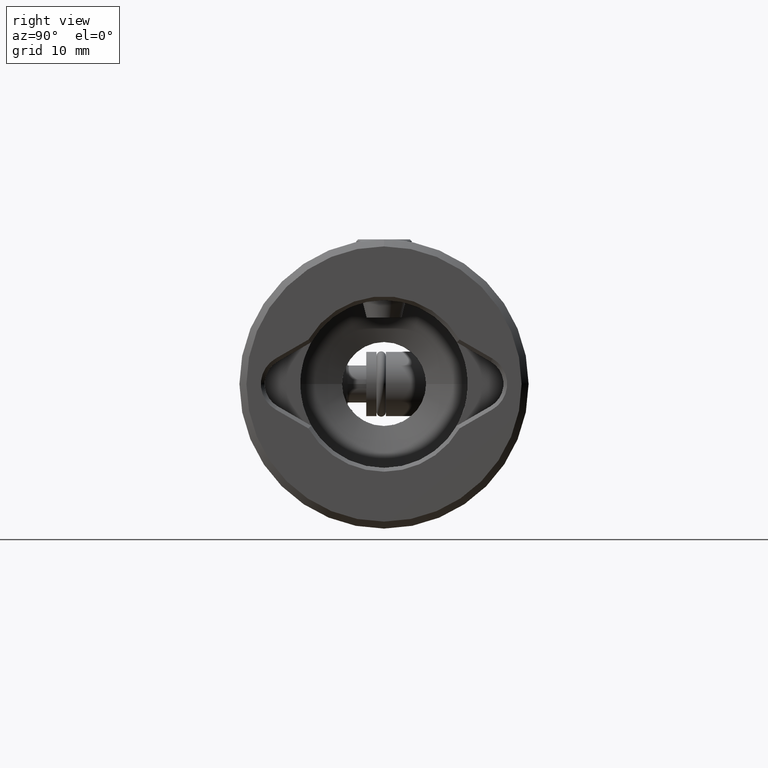
[diagram: clean part render]
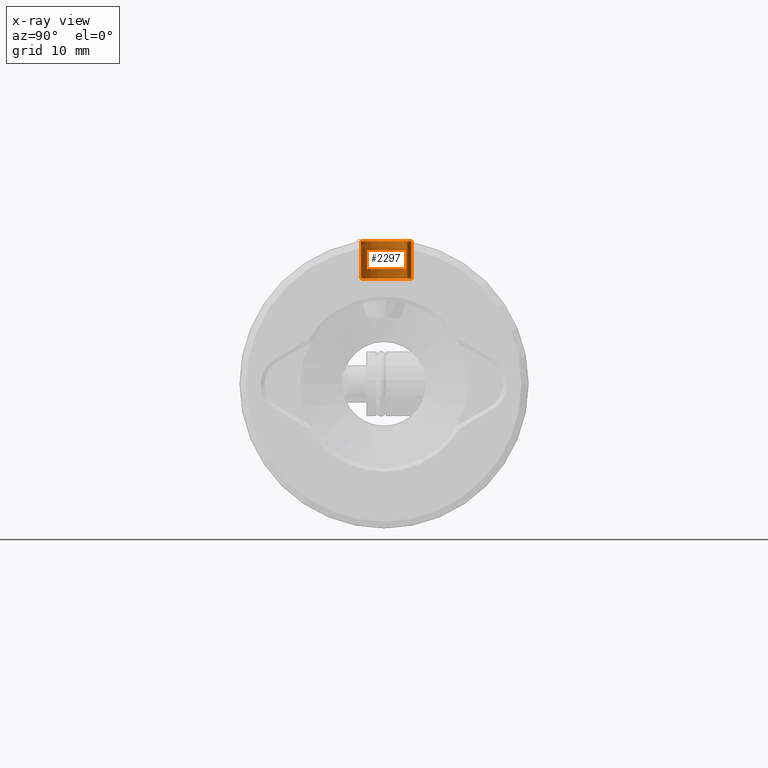
[diagram: x-ray — body ghosted, one internal face saturated and labeled with its STEP entity id]
A machine part, right view, then the same camera in x-ray: the body is ghosted and one INTERNAL B-rep face — a face not visible from any outside direction — is saturated and labeled: STEP entity #2297.
In plain terms, the highlighted cylindrical surface (edge-blend (fillet) strip) has radius 3 mm, axis along (-0, 0, 1).
Its self-contained STEP definition (entity closure, byte-faithful):
#82 = FACE_OUTER_BOUND ( 'NONE', #4074, .T. ) ;
#782 = EDGE_CURVE ( 'NONE', #2099, #3677, #3738, .T. ) ;
#787 = DIRECTION ( 'NONE',  ( 1.000000000000000000, -0.0000000000000000000, -0.0000000000000000000 ) ) ;
#810 = VERTEX_POINT ( 'NONE', #3916 ) ;
#876 = CARTESIAN_POINT ( 'NONE',  ( 0.1999999999999987899, 0.0000000000000000000, 3.000000000000000444 ) ) ;
#911 = DIRECTION ( 'NONE',  ( -1.000000000000000000, -0.0000000000000000000, -0.0000000000000000000 ) ) ;
#939 = CYLINDRICAL_SURFACE ( 'NONE', #3050, 3.000000000000000444 ) ;
#1152 = CARTESIAN_POINT ( 'NONE',  ( 4.199999999999943334, 0.0000000000000000000, 3.000000000000000444 ) ) ;
#1264 = ORIENTED_EDGE ( 'NONE', *, *, #1841, .T. ) ;
#1274 = DIRECTION ( 'NONE',  ( 0.0000000000000000000, 0.0000000000000000000, 1.000000000000000000 ) ) ;
#1841 = EDGE_CURVE ( 'NONE', #810, #1916, #4530, .T. ) ;
#1916 = VERTEX_POINT ( 'NONE', #3203 ) ;
#1996 = CARTESIAN_POINT ( 'NONE',  ( 8.400000000000000355, 0.0000000000000000000, 0.0000000000000000000 ) ) ;
#2023 = VECTOR ( 'NONE', #2472, 1000.000000000000000 ) ;
#2099 = VERTEX_POINT ( 'NONE', #1152 ) ;
#2259 = CARTESIAN_POINT ( 'NONE',  ( 0.1999999999999987899, 0.0000000000000000000, 0.0000000000000000000 ) ) ;
#2297 = ADVANCED_FACE ( 'NONE', ( #82 ), #939, .T. ) ;
#2472 = DIRECTION ( 'NONE',  ( -1.000000000000000000, -0.0000000000000000000, -0.0000000000000000000 ) ) ;
#2486 = EDGE_CURVE ( 'NONE', #2099, #810, #3402, .T. ) ;
#2561 = CIRCLE ( 'NONE', #4527, 3.000000000000000444 ) ;
#2787 = CARTESIAN_POINT ( 'NONE',  ( 4.199999999999943334, 0.0000000000000000000, 0.0000000000000000000 ) ) ;
#3050 = AXIS2_PLACEMENT_3D ( 'NONE', #1996, #911, #1274 ) ;
#3091 = DIRECTION ( 'NONE',  ( -1.000000000000000000, 0.0000000000000000000, 0.0000000000000000000 ) ) ;
#3203 = CARTESIAN_POINT ( 'NONE',  ( 0.1999999999999987899, 3.673940397442060361E-16, -3.000000000000000444 ) ) ;
#3402 = CIRCLE ( 'NONE', #4551, 3.000000000000000444 ) ;
#3621 = CARTESIAN_POINT ( 'NONE',  ( 8.400000000000000355, 3.673940397442060361E-16, -3.000000000000000444 ) ) ;
#3642 = DIRECTION ( 'NONE',  ( 0.0000000000000000000, 0.0000000000000000000, -1.000000000000000000 ) ) ;
#3660 = ORIENTED_EDGE ( 'NONE', *, *, #4245, .T. ) ;
#3677 = VERTEX_POINT ( 'NONE', #876 ) ;
#3738 = LINE ( 'NONE', #4622, #2023 ) ;
#3916 = CARTESIAN_POINT ( 'NONE',  ( 4.199999999999943334, 3.673940397442060361E-16, -3.000000000000000444 ) ) ;
#3963 = ORIENTED_EDGE ( 'NONE', *, *, #2486, .T. ) ;
#4074 = EDGE_LOOP ( 'NONE', ( #3963, #1264, #3660, #4079 ) ) ;
#4079 = ORIENTED_EDGE ( 'NONE', *, *, #782, .F. ) ;
#4168 = DIRECTION ( 'NONE',  ( 0.0000000000000000000, 0.0000000000000000000, -1.000000000000000000 ) ) ;
#4245 = EDGE_CURVE ( 'NONE', #1916, #3677, #2561, .T. ) ;
#4355 = DIRECTION ( 'NONE',  ( -1.000000000000000000, -0.0000000000000000000, -0.0000000000000000000 ) ) ;
#4413 = VECTOR ( 'NONE', #4355, 1000.000000000000000 ) ;
#4527 = AXIS2_PLACEMENT_3D ( 'NONE', #2259, #787, #3642 ) ;
#4530 = LINE ( 'NONE', #3621, #4413 ) ;
#4551 = AXIS2_PLACEMENT_3D ( 'NONE', #2787, #3091, #4168 ) ;
#4622 = CARTESIAN_POINT ( 'NONE',  ( 8.400000000000000355, 0.0000000000000000000, 3.000000000000000444 ) ) ;